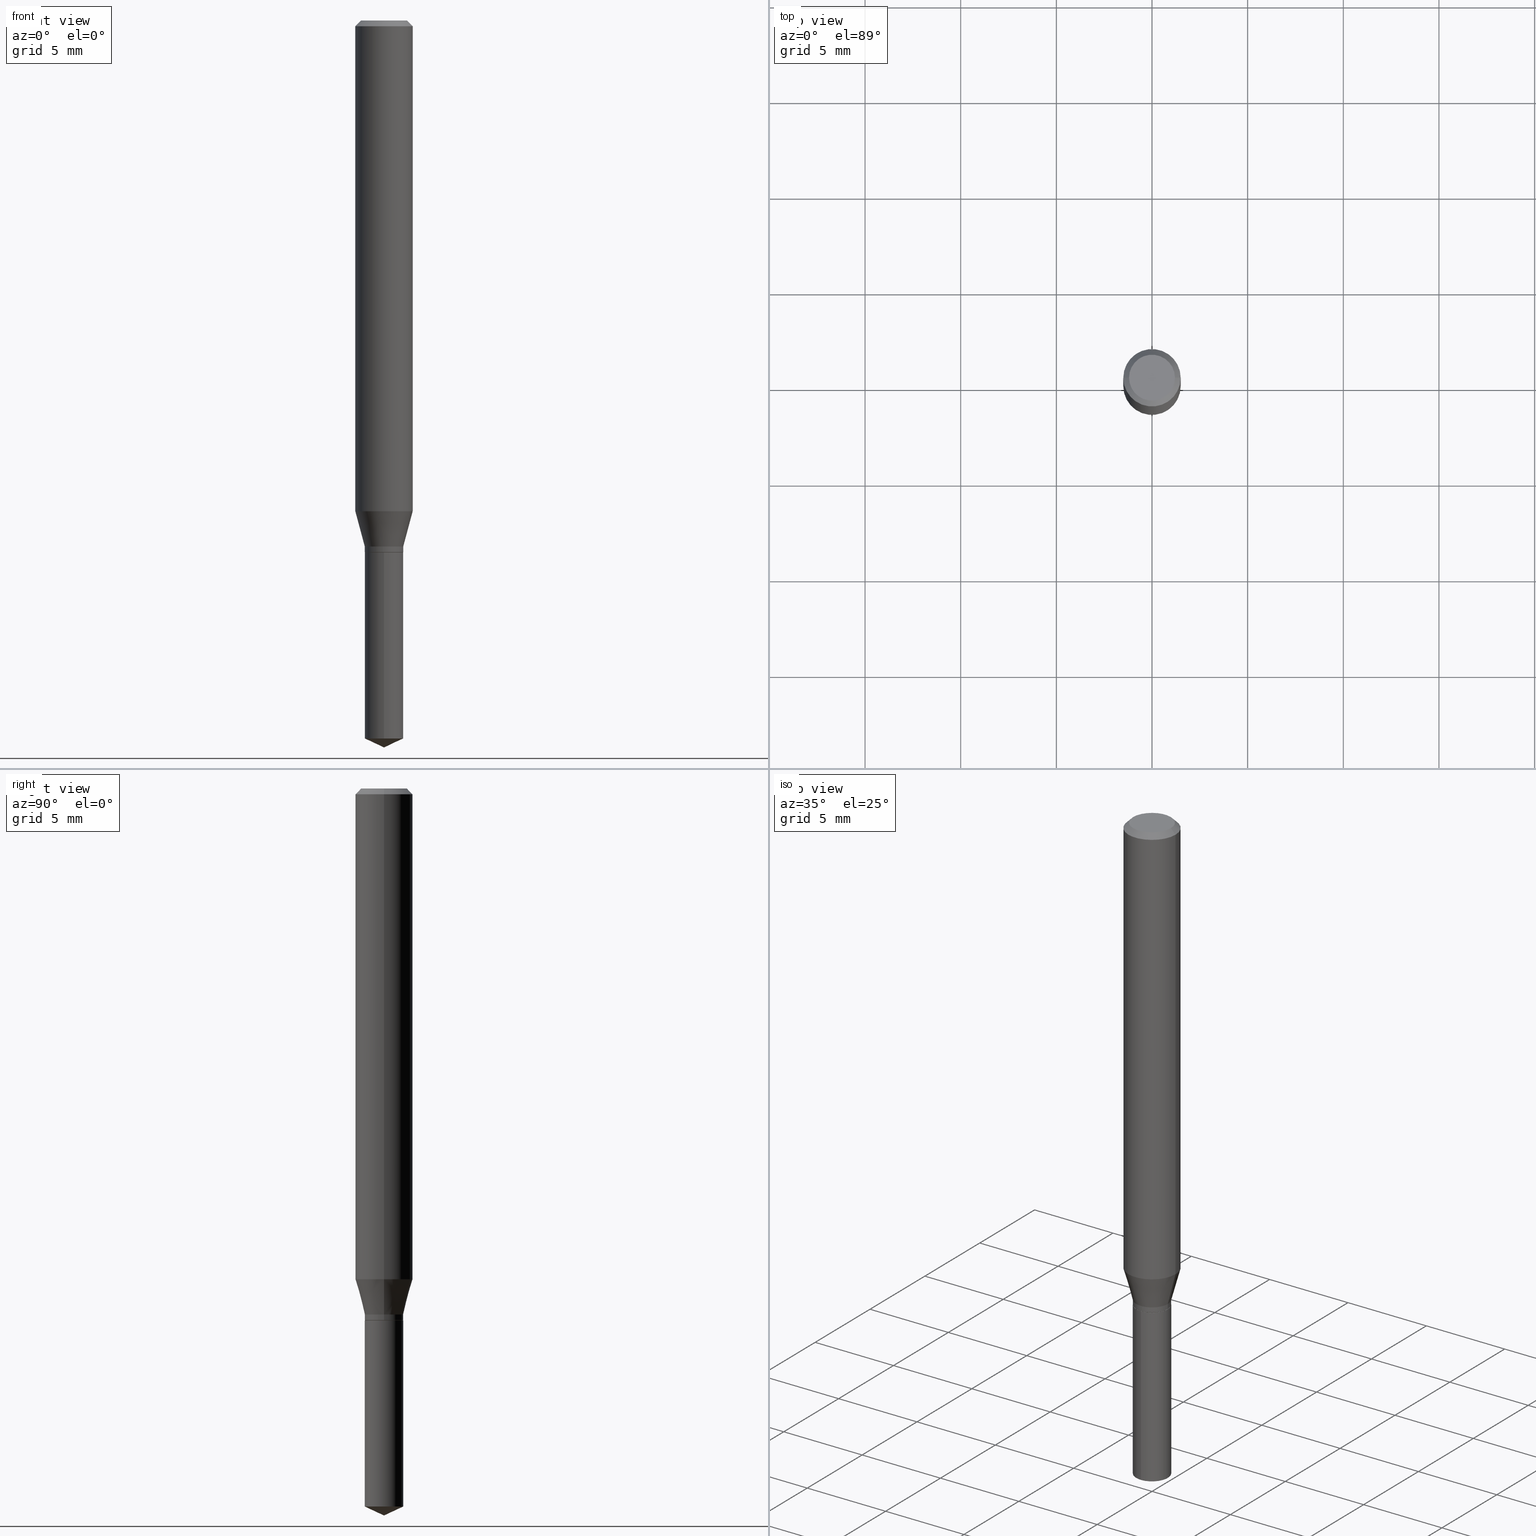
[diagram: canonical four-view strip — front | top / right | iso, engineering-drawing reading convention]
A machine part, canonical four-view strip (front | top / right | iso — engineering-drawing reading convention). The complete STEP part file that produces these views, byte-faithful:
ISO-10303-21;
HEADER;
FILE_DESCRIPTION (( 'STEP AP203' ),
    '1' );
FILE_NAME ('07602.STEP',
    '2024-04-23T23:36:06',
    ( '' ),
    ( '' ),
    'SwSTEP 2.0',
    'SolidWorks 2023',
    '' );
FILE_SCHEMA (( 'CONFIG_CONTROL_DESIGN' ));
ENDSEC;

DATA;
#1 = CARTESIAN_POINT ( 'NONE',  ( 2.810196519931463098E-16, 0.03954999999999617849, -1.094500000000000028 ) ) ;
#2 = CARTESIAN_POINT ( 'NONE',  ( -0.03954999999999996019, -3.518759489069875507E-15, -1.082600000000000007 ) ) ;
#3 = EDGE_LOOP ( 'NONE', ( #169, #244, #289, #199 ) ) ;
#4 = PERSON_AND_ORGANIZATION ( #125, #327 ) ;
#5 = CARTESIAN_POINT ( 'NONE',  ( 2.676565608369631794E-29, -3.821426325363822773E-15, -1.094499999999999806 ) ) ;
#6 = CONICAL_SURFACE ( 'NONE', #288, 0.05904999999999999832, 0.7853981633974452814 ) ;
#7 = ORIENTED_EDGE ( 'NONE', *, *, #172, .T. ) ;
#8 = EDGE_CURVE ( 'NONE', #353, #316, #53, .T. ) ;
#9 = EDGE_LOOP ( 'NONE', ( #242, #7, #349, #418 ) ) ;
#10 = PERSON_AND_ORGANIZATION ( #125, #327 ) ;
#11 = ORIENTED_EDGE ( 'NONE', *, *, #432, .F. ) ;
#12 = VECTOR ( 'NONE', #146, 39.37007874015748143 ) ;
#13 = PRODUCT_DEFINITION_FORMATION_WITH_SPECIFIED_SOURCE ( 'ANY', '', #95, .NOT_KNOWN. ) ;
#14 = ORIENTED_EDGE ( 'NONE', *, *, #58, .F. ) ;
#15 = APPROVAL ( #30, 'UNSPECIFIED' ) ;
#16 = DIRECTION ( 'NONE',  ( 0.7071067811864931718, -2.468850131081687503E-15, 0.7071067811866018626 ) ) ;
#17 = EDGE_LOOP ( 'NONE', ( #424, #340 ) ) ;
#18 = CARTESIAN_POINT ( 'NONE',  ( 2.676565608369631794E-29, -3.821426325363822773E-15, -1.094499999999999806 ) ) ;
#19 = DIRECTION ( 'NONE',  ( 2.445458899330789267E-29, -3.491495526022433599E-15, -1.000000000000000000 ) ) ;
#20 = CARTESIAN_POINT ( 'NONE',  ( 2.469495559832377020E-29, -3.525785175301884178E-15, -1.009825009252406369 ) ) ;
#21 = VECTOR ( 'NONE', #475, 39.37007874015748143 ) ;
#22 = EDGE_CURVE ( 'NONE', #116, #115, #398, .T. ) ;
#23 = CARTESIAN_POINT ( 'NONE',  ( 0.000000000000000000, 0.000000000000000000, 0.000000000000000000 ) ) ;
#24 = DATE_AND_TIME ( #306, #99 ) ;
#25 = CARTESIAN_POINT ( 'NONE',  ( 2.676565608369631794E-29, -3.821426325363822773E-15, -1.094499999999999806 ) ) ;
#26 = CARTESIAN_POINT ( 'NONE',  ( -0.05905000000000006077, 4.195754854663395916E-16, -2.904631170795524694E-30 ) ) ;
#27 = APPROVAL ( #449, 'UNSPECIFIED' ) ;
#28 = MANIFOLD_SOLID_BREP ( 'Body-Move/Copy2[1]', #241 ) ;
#29 = AXIS2_PLACEMENT_3D ( 'NONE', #144, #363, #277 ) ;
#30 = APPROVAL_STATUS ( 'not_yet_approved' ) ;
#31 = DIRECTION ( 'NONE',  ( -2.445458899330790108E-29, 3.491495526022433205E-15, 1.000000000000000000 ) ) ;
#32 = ORIENTED_EDGE ( 'NONE', *, *, #181, .F. ) ;
#33 = APPROVAL_DATE_TIME ( #268, #27 ) ;
#34 = ORIENTED_EDGE ( 'NONE', *, *, #342, .F. ) ;
#35 = DATE_TIME_ROLE ( 'classification_date' ) ;
#36 = ADVANCED_FACE ( 'NONE', ( #472 ), #366, .T. ) ;
#37 = CIRCLE ( 'NONE', #433, 0.03905000000000000138 ) ;
#38 = MANIFOLD_SOLID_BREP ( 'Body-Move/Copy2[2]', #249 ) ;
#39 = ORIENTED_EDGE ( 'NONE', *, *, #354, .F. ) ;
#40 = DIRECTION ( 'NONE',  ( 2.438088387897960049E-29, -3.491481338843145188E-15, -1.000000000000000000 ) ) ;
#41 = ORIENTED_EDGE ( 'NONE', *, *, #432, .T. ) ;
#42 = PERSON_AND_ORGANIZATION_ROLE ( 'classification_officer' ) ;
#43 = CARTESIAN_POINT ( 'NONE',  ( 2.647464529576028949E-29, -3.779877697431589411E-15, -1.082600000000000007 ) ) ;
#44 = EDGE_CURVE ( 'NONE', #115, #314, #309, .T. ) ;
#45 = ORIENTED_EDGE ( 'NONE', *, *, #388, .F. ) ;
#46 = CIRCLE ( 'NONE', #184, 0.03954999999999996019 ) ;
#47 = CARTESIAN_POINT ( 'NONE',  ( 2.675342873966538993E-29, -3.819680584694400481E-15, -1.093999999999999861 ) ) ;
#48 = VERTEX_POINT ( 'NONE', #178 ) ;
#49 = CARTESIAN_POINT ( 'NONE',  ( -0.03954999999999996019, 2.810196519931193406E-16, -1.945438828195813076E-30 ) ) ;
#50 = ADVANCED_FACE ( 'NONE', ( #407 ), #171, .F. ) ;
#51 = AXIS2_PLACEMENT_3D ( 'NONE', #260, #255, #335 ) ;
#52 = VECTOR ( 'NONE', #305, 39.37007874015747433 ) ;
#53 = LINE ( 'NONE', #299, #21 ) ;
#54 = CC_DESIGN_SECURITY_CLASSIFICATION ( #411, ( #13 ) ) ;
#55 = EDGE_LOOP ( 'NONE', ( #273, #395, #119, #69 ) ) ;
#56 = DIRECTION ( 'NONE',  ( -2.445468806185136597E-29, 3.491481338843145583E-15, 1.000000000000000000 ) ) ;
#57 = ADVANCED_BREP_SHAPE_REPRESENTATION ( '07602', ( #28, #38, #405 ), #265 ) ;
#58 = EDGE_CURVE ( 'NONE', #115, #127, #252, .T. ) ;
#59 = CARTESIAN_POINT ( 'NONE',  ( 2.888098660104663766E-31, -4.123439461173779647E-17, -0.01181000000000007044 ) ) ;
#60 = DIRECTION ( 'NONE',  ( 1.000000000000000000, -6.982962677686266711E-15, 4.876176775795935793E-29 ) ) ;
#61 = AXIS2_PLACEMENT_3D ( 'NONE', #135, #435, #89 ) ;
#62 = CONICAL_SURFACE ( 'NONE', #399, 0.03905000000000000138, 0.7853981633973714516 ) ;
#63 = DIRECTION ( 'NONE',  ( -2.445458899330790108E-29, 3.491495526022433205E-15, 1.000000000000000000 ) ) ;
#64 = ADVANCED_FACE ( 'NONE', ( #213 ), #430, .T. ) ;
#65 = FACE_OUTER_BOUND ( 'NONE', #109, .T. ) ;
#66 = APPROVAL ( #427, 'UNSPECIFIED' ) ;
#67 = AXIS2_PLACEMENT_3D ( 'NONE', #203, #214, #235 ) ;
#68 = DATE_AND_TIME ( #419, #176 ) ;
#69 = ORIENTED_EDGE ( 'NONE', *, *, #412, .F. ) ;
#70 =( CONVERSION_BASED_UNIT ( 'INCH', #195 ) LENGTH_UNIT ( ) NAMED_UNIT ( #253 ) );
#71 = ORIENTED_EDGE ( 'NONE', *, *, #106, .F. ) ;
#72 = ADVANCED_FACE ( 'NONE', ( #403 ), #469, .F. ) ;
#73 = ORIENTED_EDGE ( 'NONE', *, *, #194, .F. ) ;
#74 = AXIS2_PLACEMENT_3D ( 'NONE', #20, #183, #341 ) ;
#75 = CIRCLE ( 'NONE', #337, 0.03954999999999996019 ) ;
#76 = ORIENTED_EDGE ( 'NONE', *, *, #318, .T. ) ;
#77 = EDGE_CURVE ( 'NONE', #314, #201, #180, .T. ) ;
#78 = LINE ( 'NONE', #210, #336 ) ;
#79 = DIRECTION ( 'NONE',  ( -6.982962677686265922E-15, -1.000000000000000000, 3.453663708804378272E-15 ) ) ;
#80 = VERTEX_POINT ( 'NONE', #215 ) ;
#81 = FACE_OUTER_BOUND ( 'NONE', #223, .T. ) ;
#82 = CARTESIAN_POINT ( 'NONE',  ( -0.05904999999999999832, -1.363934299490470474E-15, -0.01181000000000007044 ) ) ;
#83 = VECTOR ( 'NONE', #16, 39.37007874015748143 ) ;
#84 = VECTOR ( 'NONE', #133, 39.37007874015748143 ) ;
#85 = LOCAL_TIME ( 19, 36, 6.000000000000000000, #320 ) ;
#86 = CARTESIAN_POINT ( 'NONE',  ( 0.000000000000000000, 0.000000000000000000, 0.000000000000000000 ) ) ;
#87 = CARTESIAN_POINT ( 'NONE',  ( 0.000000000000000000, 0.000000000000000000, 0.000000000000000000 ) ) ;
#88 = ORIENTED_EDGE ( 'NONE', *, *, #402, .F. ) ;
#89 = DIRECTION ( 'NONE',  ( 1.000000000000000000, -6.982962677686266711E-15, 4.876185090822587894E-29 ) ) ;
#90 = PLANE ( 'NONE',  #471 ) ;
#91 = FACE_OUTER_BOUND ( 'NONE', #55, .T. ) ;
#92 = DIRECTION ( 'NONE',  ( 1.000000000000000000, -6.982962677686266711E-15, 4.876176775795935793E-29 ) ) ;
#93 = CARTESIAN_POINT ( 'NONE',  ( 0.000000000000000000, 0.000000000000000000, 0.000000000000000000 ) ) ;
#94 = ADVANCED_FACE ( 'NONE', ( #372 ), #442, .T. ) ;
#95 = PRODUCT ( '07602', '07602', '', ( #229 ) ) ;
#96 = EDGE_LOOP ( 'NONE', ( #41, #409, #73, #357 ) ) ;
#97 = VECTOR ( 'NONE', #292, 39.37007874015748143 ) ;
#98 = VERTEX_POINT ( 'NONE', #82 ) ;
#99 = LOCAL_TIME ( 19, 36, 6.000000000000000000, #263 ) ;
#100 = EDGE_CURVE ( 'NONE', #370, #353, #157, .T. ) ;
#101 = PRODUCT_RELATED_PRODUCT_CATEGORY ( 'detail', '', ( #95 ) ) ;
#102 = FACE_OUTER_BOUND ( 'NONE', #240, .T. ) ;
#103 = DIRECTION ( 'NONE',  ( 1.000000000000000000, -6.982962677686262766E-15, 0.000000000000000000 ) ) ;
#104 = CIRCLE ( 'NONE', #355, 0.03905000000000000138 ) ;
#105 = COORDINATED_UNIVERSAL_TIME_OFFSET ( 5, 0, .BEHIND. ) ;
#106 = EDGE_CURVE ( 'NONE', #186, #461, #476, .T. ) ;
#107 = CARTESIAN_POINT ( 'NONE',  ( 0.05904999999999999832, -4.463468013801466955E-16, -0.01181000000000007044 ) ) ;
#108 = CARTESIAN_POINT ( 'NONE',  ( 3.658651059288795076E-29, -5.223626456482161457E-15, -1.496099999999999985 ) ) ;
#109 = EDGE_LOOP ( 'NONE', ( #487, #158, #426, #45 ) ) ;
#110 = APPLICATION_CONTEXT ( 'configuration controlled 3d designs of mechanical parts and assemblies' ) ;
#111 =( LENGTH_UNIT ( ) NAMED_UNIT ( * ) SI_UNIT ( $, .METRE. ) );
#112 = CIRCLE ( 'NONE', #159, 0.03955000000000000182 ) ;
#113 = AXIS2_PLACEMENT_3D ( 'NONE', #154, #31, #351 ) ;
#114 = EDGE_CURVE ( 'NONE', #461, #319, #112, .T. ) ;
#115 = VERTEX_POINT ( 'NONE', #486 ) ;
#116 = VERTEX_POINT ( 'NONE', #310 ) ;
#117 = APPROVAL_DATE_TIME ( #162, #66 ) ;
#118 = UNCERTAINTY_MEASURE_WITH_UNIT (LENGTH_MEASURE( 1.000000000000000082E-05 ), #70, 'distance_accuracy_value', 'NONE');
#119 = ORIENTED_EDGE ( 'NONE', *, *, #217, .F. ) ;
#120 = CC_DESIGN_DATE_AND_TIME_ASSIGNMENT ( #24, #189, ( #137 ) ) ;
#121 = AXIS2_PLACEMENT_3D ( 'NONE', #420, #315, #455 ) ;
#122 = FACE_OUTER_BOUND ( 'NONE', #153, .T. ) ;
#123 = ORIENTED_EDGE ( 'NONE', *, *, #230, .T. ) ;
#124 = ORIENTED_EDGE ( 'NONE', *, *, #318, .F. ) ;
#125 = PERSON ( 'UNSPECIFIED', 'UNSPECIFIED', 'UNSPECIFIED', ('UNSPECIFIED'), ('UNSPECIFIED'), ('UNSPECIFIED') ) ;
#126 = CYLINDRICAL_SURFACE ( 'NONE', #416, 0.03954999999999996019 ) ;
#127 = VERTEX_POINT ( 'NONE', #193 ) ;
#128 = CC_DESIGN_APPROVAL ( #27, ( #13 ) ) ;
#129 = DIRECTION ( 'NONE',  ( 1.000000000000000000, -6.982962677686262766E-15, 0.000000000000000000 ) ) ;
#130 = ADVANCED_FACE ( 'NONE', ( #65 ), #444, .T. ) ;
#131 = DIRECTION ( 'NONE',  ( -2.438088387897960049E-29, 3.491481338843145188E-15, 1.000000000000000000 ) ) ;
#132 = DIRECTION ( 'NONE',  ( -2.445458899330790108E-29, 3.491495526022433205E-15, 1.000000000000000000 ) ) ;
#133 = DIRECTION ( 'NONE',  ( -2.445458899330790108E-29, 3.491495526022433599E-15, 1.000000000000000000 ) ) ;
#134 = CARTESIAN_POINT ( 'NONE',  ( 2.676565608369631794E-29, -3.821426325363822773E-15, -1.094499999999999806 ) ) ;
#135 = CARTESIAN_POINT ( 'NONE',  ( 8.265746106709734507E-48, -1.180129479067563789E-33, -3.380025165646692144E-19 ) ) ;
#136 = EDGE_LOOP ( 'NONE', ( #207, #174, #124, #14 ) ) ;
#137 = PRODUCT_DEFINITION ( 'UNKNOWN', '', #13, #275 ) ;
#138 = CARTESIAN_POINT ( 'NONE',  ( 2.888098660104663766E-31, -4.123439461173779647E-17, -0.01181000000000007044 ) ) ;
#139 = APPROVAL_PERSON_ORGANIZATION ( #278, #15, #415 ) ;
#140 = LINE ( 'NONE', #1, #84 ) ;
#141 = CC_DESIGN_PERSON_AND_ORGANIZATION_ASSIGNMENT ( #4, #42, ( #411 ) ) ;
#142 = DIRECTION ( 'NONE',  ( -6.982962677686265922E-15, -1.000000000000000000, 3.453663708804378272E-15 ) ) ;
#143 = DIRECTION ( 'NONE',  ( -6.982962677686265922E-15, -1.000000000000000000, 6.907327417608756543E-15 ) ) ;
#144 = CARTESIAN_POINT ( 'NONE',  ( 2.647464529576028949E-29, -3.779877697431589411E-15, -1.082600000000000007 ) ) ;
#145 = APPROVAL_ROLE ( '' ) ;
#146 = DIRECTION ( 'NONE',  ( -0.7071067811865453523, 2.468850131082234184E-15, -0.7071067811865496822 ) ) ;
#147 = ADVANCED_FACE ( 'NONE', ( #102 ), #397, .T. ) ;
#148 = AXIS2_PLACEMENT_3D ( 'NONE', #378, #63, #228 ) ;
#149 = LOCAL_TIME ( 19, 36, 6.000000000000000000, #317 ) ;
#150 = CARTESIAN_POINT ( 'NONE',  ( 0.000000000000000000, 0.000000000000000000, 0.000000000000000000 ) ) ;
#151 = LINE ( 'NONE', #107, #276 ) ;
#152 = CARTESIAN_POINT ( 'NONE',  ( -0.03954999999999996019, -3.498858045438469971E-15, -1.082600000000000007 ) ) ;
#153 = EDGE_LOOP ( 'NONE', ( #88, #161, #196, #237 ) ) ;
#154 = CARTESIAN_POINT ( 'NONE',  ( 2.676565608369631794E-29, -3.821426325363822773E-15, -1.094499999999999806 ) ) ;
#155 = DIRECTION ( 'NONE',  ( -2.445468806185136597E-29, 3.491481338843145583E-15, 1.000000000000000000 ) ) ;
#156 = EDGE_CURVE ( 'NONE', #201, #370, #185, .T. ) ;
#157 = CIRCLE ( 'NONE', #74, 0.05905000000000011628 ) ;
#158 = ORIENTED_EDGE ( 'NONE', *, *, #100, .T. ) ;
#159 = AXIS2_PLACEMENT_3D ( 'NONE', #382, #484, #143 ) ;
#160 = CC_DESIGN_APPROVAL ( #66, ( #411 ) ) ;
#161 = ORIENTED_EDGE ( 'NONE', *, *, #114, .T. ) ;
#162 = DATE_AND_TIME ( #330, #85 ) ;
#163 = CYLINDRICAL_SURFACE ( 'NONE', #233, 0.05905000000000006077 ) ;
#164 = EDGE_LOOP ( 'NONE', ( #34, #284, #211, #329 ) ) ;
#165 = EDGE_LOOP ( 'NONE', ( #392, #282, #262, #39 ) ) ;
#166 = AXIS2_PLACEMENT_3D ( 'NONE', #93, #434, #332 ) ;
#167 = VECTOR ( 'NONE', #481, 39.37007874015748854 ) ;
#168 = DIRECTION ( 'NONE',  ( 1.000000000000000000, -6.982962677686265922E-15, 4.876176775795935793E-29 ) ) ;
#169 = ORIENTED_EDGE ( 'NONE', *, *, #272, .F. ) ;
#170 = DIRECTION ( 'NONE',  ( 0.2588190451025213501, 1.565188264969621968E-15, 0.9659258262890682012 ) ) ;
#171 = PLANE ( 'NONE',  #379 ) ;
#172 = EDGE_CURVE ( 'NONE', #422, #116, #37, .T. ) ;
#173 = DIRECTION ( 'NONE',  ( -2.445468806185136597E-29, 3.491481338843145583E-15, 1.000000000000000000 ) ) ;
#174 = ORIENTED_EDGE ( 'NONE', *, *, #77, .T. ) ;
#175 = CONICAL_SURFACE ( 'NONE', #425, 0.03954999999999996019, 0.2617993877991500740 ) ;
#176 = LOCAL_TIME ( 19, 36, 6.000000000000000000, #308 ) ;
#177 = CARTESIAN_POINT ( 'NONE',  ( 2.647464529576028949E-29, -3.779877697431589411E-15, -1.082600000000000007 ) ) ;
#178 = CARTESIAN_POINT ( 'NONE',  ( 0.04724000000000000421, -3.852183633974369345E-16, -3.380025165621689721E-19 ) ) ;
#179 = PERSON_AND_ORGANIZATION_ROLE ( 'design_supplier' ) ;
#180 = LINE ( 'NONE', #49, #97 ) ;
#181 = EDGE_CURVE ( 'NONE', #186, #319, #188, .T. ) ;
#182 = SECURITY_CLASSIFICATION_LEVEL ( 'unclassified' ) ;
#183 = DIRECTION ( 'NONE',  ( -2.445468806185136597E-29, 3.491481338843145583E-15, 1.000000000000000000 ) ) ;
#184 = AXIS2_PLACEMENT_3D ( 'NONE', #293, #56, #269 ) ;
#185 = LINE ( 'NONE', #152, #52 ) ;
#186 = VERTEX_POINT ( 'NONE', #232 ) ;
#187 =( NAMED_UNIT ( * ) PLANE_ANGLE_UNIT ( ) SI_UNIT ( $, .RADIAN. ) );
#188 = LINE ( 'NONE', #108, #243 ) ;
#189 = DATE_TIME_ROLE ( 'creation_date' ) ;
#190 = ADVANCED_FACE ( 'NONE', ( #321 ), #90, .F. ) ;
#191 = DIRECTION ( 'NONE',  ( -2.445468806185136597E-29, 3.491481338843145583E-15, 1.000000000000000000 ) ) ;
#192 = DIRECTION ( 'NONE',  ( 1.000000000000000000, 0.000000000000000000, 0.000000000000000000 ) ) ;
#193 = CARTESIAN_POINT ( 'NONE',  ( 0.03954999999999996019, -4.056053871334080742E-15, -1.082600000000000007 ) ) ;
#194 = EDGE_CURVE ( 'NONE', #316, #98, #220, .T. ) ;
#195 = LENGTH_MEASURE_WITH_UNIT ( LENGTH_MEASURE( 0.02539999999999999897 ), #111 );
#196 = ORIENTED_EDGE ( 'NONE', *, *, #412, .T. ) ;
#197 = PERSON_AND_ORGANIZATION ( #125, #327 ) ;
#198 = DIRECTION ( 'NONE',  ( -2.445458899330790108E-29, 3.491495526022433205E-15, 1.000000000000000000 ) ) ;
#199 = ORIENTED_EDGE ( 'NONE', *, *, #388, .T. ) ;
#200 = CYLINDRICAL_SURFACE ( 'NONE', #326, 0.03955000000000000182 ) ;
#201 = VERTEX_POINT ( 'NONE', #2 ) ;
#202 = EDGE_CURVE ( 'NONE', #422, #314, #280, .T. ) ;
#203 = CARTESIAN_POINT ( 'NONE',  ( 2.888098660104663766E-31, -4.123439461173779647E-17, -0.01181000000000007044 ) ) ;
#204 = ORIENTED_EDGE ( 'NONE', *, *, #106, .T. ) ;
#205 = APPROVAL_ROLE ( '' ) ;
#206 = DIRECTION ( 'NONE',  ( 1.000000000000000000, -6.982962677686266711E-15, 0.000000000000000000 ) ) ;
#207 = ORIENTED_EDGE ( 'NONE', *, *, #44, .T. ) ;
#208 = AXIS2_PLACEMENT_3D ( 'NONE', #440, #132, #142 ) ;
#209 = LOCAL_TIME ( 19, 36, 6.000000000000000000, #105 ) ;
#210 = CARTESIAN_POINT ( 'NONE',  ( -2.761761739024651013E-16, -0.03955000000000382515, -1.094499999999999806 ) ) ;
#211 = ORIENTED_EDGE ( 'NONE', *, *, #194, .T. ) ;
#212 = DIRECTION ( 'NONE',  ( -2.445468806185136597E-29, 3.491481338843145583E-15, 1.000000000000000000 ) ) ;
#213 = FACE_OUTER_BOUND ( 'NONE', #136, .T. ) ;
#214 = DIRECTION ( 'NONE',  ( -2.445468806185136597E-29, 3.491481338843145583E-15, 1.000000000000000000 ) ) ;
#215 = CARTESIAN_POINT ( 'NONE',  ( 2.810196519931557268E-16, 0.03954999999999617849, -1.094500000000000028 ) ) ;
#216 = AXIS2_PLACEMENT_3D ( 'NONE', #177, #431, #371 ) ;
#217 = EDGE_CURVE ( 'NONE', #441, #80, #250, .T. ) ;
#218 = DIRECTION ( 'NONE',  ( -2.445468806185136597E-29, 3.491481338843145583E-15, 1.000000000000000000 ) ) ;
#219 = DIRECTION ( 'NONE',  ( -2.445468806185136877E-29, 3.491481338843145188E-15, 1.000000000000000000 ) ) ;
#220 = CIRCLE ( 'NONE', #67, 0.05904999999999999832 ) ;
#221 = CC_DESIGN_APPROVAL ( #15, ( #137 ) ) ;
#222 = DIRECTION ( 'NONE',  ( -2.445468806185136597E-29, 3.491481338843145583E-15, 1.000000000000000000 ) ) ;
#223 = EDGE_LOOP ( 'NONE', ( #248, #438, #453, #245 ) ) ;
#224 = ADVANCED_FACE ( 'NONE', ( #302 ), #6, .T. ) ;
#225 =( NAMED_UNIT ( * ) SI_UNIT ( $, .STERADIAN. ) SOLID_ANGLE_UNIT ( ) );
#226 = LINE ( 'NONE', #279, #12 ) ;
#227 = CALENDAR_DATE ( 2024, 23, 4 ) ;
#228 = DIRECTION ( 'NONE',  ( -6.982962677686267499E-15, -1.000000000000000000, 3.520397390770444404E-15 ) ) ;
#229 = MECHANICAL_CONTEXT ( 'NONE', #304, 'mechanical' ) ;
#230 = EDGE_CURVE ( 'NONE', #360, #48, #463, .T. ) ;
#231 = AXIS2_PLACEMENT_3D ( 'NONE', #18, #218, #376 ) ;
#232 = CARTESIAN_POINT ( 'NONE',  ( 3.658651059288794515E-29, -5.223626456482161457E-15, -1.496099999999999985 ) ) ;
#233 = AXIS2_PLACEMENT_3D ( 'NONE', #87, #212, #92 ) ;
#234 = VECTOR ( 'NONE', #413, 39.37007874015748143 ) ;
#235 = DIRECTION ( 'NONE',  ( 1.000000000000000000, -6.982962677686266711E-15, 0.000000000000000000 ) ) ;
#236 = CC_DESIGN_DATE_AND_TIME_ASSIGNMENT ( #391, #35, ( #411 ) ) ;
#237 = ORIENTED_EDGE ( 'NONE', *, *, #286, .F. ) ;
#238 = PERSON_AND_ORGANIZATION ( #125, #327 ) ;
#239 = DIRECTION ( 'NONE',  ( -0.7071067811864931718, 7.493145998870158523E-15, 0.7071067811866018626 ) ) ;
#240 = EDGE_LOOP ( 'NONE', ( #71, #369, #429 ) ) ;
#241 = CLOSED_SHELL ( 'NONE', ( #462, #447, #147, #362, #72 ) ) ;
#242 = ORIENTED_EDGE ( 'NONE', *, *, #202, .F. ) ;
#243 = VECTOR ( 'NONE', #414, 39.37007874015748854 ) ;
#244 = ORIENTED_EDGE ( 'NONE', *, *, #230, .F. ) ;
#245 = ORIENTED_EDGE ( 'NONE', *, *, #100, .F. ) ;
#246 = PERSON_AND_ORGANIZATION_ROLE ( 'creator' ) ;
#247 = CARTESIAN_POINT ( 'NONE',  ( -0.03905000000000000138, -3.541310159875392243E-15, -1.094499999999999806 ) ) ;
#248 = ORIENTED_EDGE ( 'NONE', *, *, #156, .F. ) ;
#249 = CLOSED_SHELL ( 'NONE', ( #94, #224, #377, #428, #64, #439, #406, #130, #36, #190, #50, #467 ) ) ;
#250 = CIRCLE ( 'NONE', #208, 0.03955000000000000182 ) ;
#251 = APPROVAL_PERSON_ORGANIZATION ( #358, #66, #205 ) ;
#252 = LINE ( 'NONE', #473, #373 ) ;
#253 = DIMENSIONAL_EXPONENTS ( 1.000000000000000000, 0.000000000000000000, 0.000000000000000000, 0.000000000000000000, 0.000000000000000000, 0.000000000000000000, 0.000000000000000000 ) ;
#254 = DIRECTION ( 'NONE',  ( -1.000000000000000000, 6.982962677686265922E-15, -4.876176775795935793E-29 ) ) ;
#255 = DIRECTION ( 'NONE',  ( 2.445468806185136597E-29, -3.491481338843145583E-15, -1.000000000000000000 ) ) ;
#256 = DIRECTION ( 'NONE',  ( -2.445458899330790108E-29, 3.491495526022433599E-15, 1.000000000000000000 ) ) ;
#257 = CARTESIAN_POINT ( 'NONE',  ( 0.03905000000000000138, -4.094111017927471097E-15, -1.094499999999999806 ) ) ;
#258 = CIRCLE ( 'NONE', #29, 0.03954999999999996019 ) ;
#259 = CONICAL_SURFACE ( 'NONE', #451, 84.42940631927456252, 1.134464013796316895 ) ;
#260 = CARTESIAN_POINT ( 'NONE',  ( 2.888098660104663766E-31, -4.123439461173779647E-17, -0.01181000000000007044 ) ) ;
#261 = DIRECTION ( 'NONE',  ( 2.445468806185136597E-29, -3.491481338843145583E-15, -1.000000000000000000 ) ) ;
#262 = ORIENTED_EDGE ( 'NONE', *, *, #58, .T. ) ;
#263 = COORDINATED_UNIVERSAL_TIME_OFFSET ( 5, 0, .BEHIND. ) ;
#264 = DIRECTION ( 'NONE',  ( 1.000000000000000000, -6.982962677686266711E-15, 4.876185090822587894E-29 ) ) ;
#265 =( GEOMETRIC_REPRESENTATION_CONTEXT ( 3 ) GLOBAL_UNCERTAINTY_ASSIGNED_CONTEXT ( ( #118 ) ) GLOBAL_UNIT_ASSIGNED_CONTEXT ( ( #70, #187, #225 ) ) REPRESENTATION_CONTEXT ( 'NONE', 'WORKASPACE' ) );
#266 = CARTESIAN_POINT ( 'NONE',  ( 3.658672935554494692E-29, -5.223595400746700193E-15, -1.496099999999999985 ) ) ;
#267 = CARTESIAN_POINT ( 'NONE',  ( 0.05905000000000011628, -3.938129121419258704E-15, -1.009825009252406369 ) ) ;
#268 = DATE_AND_TIME ( #227, #209 ) ;
#269 = DIRECTION ( 'NONE',  ( 1.000000000000000000, -6.982962677686262766E-15, 0.000000000000000000 ) ) ;
#270 = DIRECTION ( 'NONE',  ( -2.445468806185136597E-29, 3.491481338843145583E-15, 1.000000000000000000 ) ) ;
#271 = DIRECTION ( 'NONE',  ( -6.982962677686265922E-15, -1.000000000000000000, 3.453663708804378272E-15 ) ) ;
#272 = EDGE_CURVE ( 'NONE', #48, #316, #151, .T. ) ;
#273 = ORIENTED_EDGE ( 'NONE', *, *, #300, .T. ) ;
#274 = CARTESIAN_POINT ( 'NONE',  ( 2.676565608369631794E-29, -3.821426325363822773E-15, -1.094499999999999806 ) ) ;
#275 = DESIGN_CONTEXT ( 'detailed design', #110, 'design' ) ;
#276 = VECTOR ( 'NONE', #350, 39.37007874015748143 ) ;
#277 = DIRECTION ( 'NONE',  ( 1.000000000000000000, -6.982962677686262766E-15, 0.000000000000000000 ) ) ;
#278 = PERSON_AND_ORGANIZATION ( #125, #327 ) ;
#279 = CARTESIAN_POINT ( 'NONE',  ( -0.05904999999999999832, 3.711095515056362547E-16, -0.01181000000000007044 ) ) ;
#280 = LINE ( 'NONE', #421, #448 ) ;
#281 = CARTESIAN_POINT ( 'NONE',  ( 2.676565608369631794E-29, -3.821426325363822773E-15, -1.094499999999999806 ) ) ;
#282 = ORIENTED_EDGE ( 'NONE', *, *, #480, .T. ) ;
#283 = CARTESIAN_POINT ( 'NONE',  ( -0.05905000000000011628, -3.106209689835544291E-15, -1.009825009252406369 ) ) ;
#284 = ORIENTED_EDGE ( 'NONE', *, *, #272, .T. ) ;
#285 = SHAPE_DEFINITION_REPRESENTATION ( #361, #57 ) ;
#286 = EDGE_CURVE ( 'NONE', #80, #441, #477, .T. ) ;
#287 = ORIENTED_EDGE ( 'NONE', *, *, #291, .T. ) ;
#288 = AXIS2_PLACEMENT_3D ( 'NONE', #138, #261, #410 ) ;
#289 = ORIENTED_EDGE ( 'NONE', *, *, #311, .T. ) ;
#290 = CALENDAR_DATE ( 2024, 23, 4 ) ;
#291 = EDGE_CURVE ( 'NONE', #116, #422, #104, .T. ) ;
#292 = DIRECTION ( 'NONE',  ( -2.445468806185136877E-29, 3.491481338843145188E-15, 1.000000000000000000 ) ) ;
#293 = CARTESIAN_POINT ( 'NONE',  ( 2.647464529576028949E-29, -3.779877697431589411E-15, -1.082600000000000007 ) ) ;
#294 = CARTESIAN_POINT ( 'NONE',  ( -9.261924752013118283E-28, 1.322368428517963298E-13, 37.87397874015748300 ) ) ;
#295 = DIRECTION ( 'NONE',  ( 6.982962677686265922E-15, 1.000000000000000000, -3.491495526022433599E-15 ) ) ;
#296 = VECTOR ( 'NONE', #170, 39.37007874015747433 ) ;
#297 = CARTESIAN_POINT ( 'NONE',  ( 2.810196519931557761E-16, 0.03954999999999485316, -1.477657532119970085 ) ) ;
#298 = DIRECTION ( 'NONE',  ( 1.000000000000000000, -6.982962677686265922E-15, 4.876176775795935793E-29 ) ) ;
#299 = CARTESIAN_POINT ( 'NONE',  ( 0.05905000000000006077, -4.123439461173744764E-16, 2.879382386107503023E-30 ) ) ;
#300 = EDGE_CURVE ( 'NONE', #319, #461, #343, .T. ) ;
#301 = ORIENTED_EDGE ( 'NONE', *, *, #44, .F. ) ;
#302 = FACE_OUTER_BOUND ( 'NONE', #164, .T. ) ;
#303 = AXIS2_PLACEMENT_3D ( 'NONE', #338, #173, #206 ) ;
#304 = APPLICATION_CONTEXT ( 'configuration controlled 3d designs of mechanical parts and assemblies' ) ;
#305 = DIRECTION ( 'NONE',  ( -0.2588190451025213501, 5.211531920934551042E-15, 0.9659258262890682012 ) ) ;
#306 = CALENDAR_DATE ( 2024, 23, 4 ) ;
#307 = CARTESIAN_POINT ( 'NONE',  ( 8.265746106709734507E-48, -1.180129479067563789E-33, -3.380025165646692144E-19 ) ) ;
#308 = COORDINATED_UNIVERSAL_TIME_OFFSET ( 5, 0, .BEHIND. ) ;
#309 = CIRCLE ( 'NONE', #347, 0.03954999999999996019 ) ;
#310 = CARTESIAN_POINT ( 'NONE',  ( 0.03905000000000000138, -4.094111017927471097E-15, -1.094499999999999806 ) ) ;
#311 = EDGE_CURVE ( 'NONE', #360, #98, #226, .T. ) ;
#312 = FACE_OUTER_BOUND ( 'NONE', #9, .T. ) ;
#313 = CARTESIAN_POINT ( 'NONE',  ( 2.676565608369631794E-29, -3.821426325363822773E-15, -1.094499999999999806 ) ) ;
#314 = VERTEX_POINT ( 'NONE', #322 ) ;
#315 = DIRECTION ( 'NONE',  ( -2.445458899330790108E-29, 3.491495526022433205E-15, 1.000000000000000000 ) ) ;
#316 = VERTEX_POINT ( 'NONE', #400 ) ;
#317 = COORDINATED_UNIVERSAL_TIME_OFFSET ( 5, 0, .BEHIND. ) ;
#318 = EDGE_CURVE ( 'NONE', #127, #201, #46, .T. ) ;
#319 = VERTEX_POINT ( 'NONE', #478 ) ;
#320 = COORDINATED_UNIVERSAL_TIME_OFFSET ( 5, 0, .BEHIND. ) ;
#321 = FACE_OUTER_BOUND ( 'NONE', #325, .T. ) ;
#322 = CARTESIAN_POINT ( 'NONE',  ( -0.03954999999999996019, -3.518759489069875507E-15, -1.093999999999999861 ) ) ;
#323 = EDGE_LOOP ( 'NONE', ( #32, #204, #367 ) ) ;
#324 = AXIS2_PLACEMENT_3D ( 'NONE', #134, #19, #295 ) ;
#325 = EDGE_LOOP ( 'NONE', ( #123, #364 ) ) ;
#326 = AXIS2_PLACEMENT_3D ( 'NONE', #281, #198, #79 ) ;
#327 = ORGANIZATION ( 'UNSPECIFIED', 'UNSPECIFIED', '' ) ;
#328 = EDGE_CURVE ( 'NONE', #127, #353, #423, .T. ) ;
#329 = ORIENTED_EDGE ( 'NONE', *, *, #311, .F. ) ;
#330 = CALENDAR_DATE ( 2024, 23, 4 ) ;
#331 = DIRECTION ( 'NONE',  ( -2.445468806185136597E-29, 3.491481338843145583E-15, 1.000000000000000000 ) ) ;
#332 = DIRECTION ( 'NONE',  ( 1.000000000000000000, -6.982962677686265922E-15, 4.876176775795935793E-29 ) ) ;
#333 = CARTESIAN_POINT ( 'NONE',  ( 0.03954999999999996019, -4.056053871334080742E-15, -1.082600000000000007 ) ) ;
#334 = DIRECTION ( 'NONE',  ( -2.445458899330790108E-29, 3.491495526022433205E-15, 1.000000000000000000 ) ) ;
#335 = DIRECTION ( 'NONE',  ( -1.000000000000000000, 6.982962677686266711E-15, 0.000000000000000000 ) ) ;
#336 = VECTOR ( 'NONE', #256, 39.37007874015748143 ) ;
#337 = AXIS2_PLACEMENT_3D ( 'NONE', #452, #345, #103 ) ;
#338 = CARTESIAN_POINT ( 'NONE',  ( 2.469495559832377020E-29, -3.525785175301884178E-15, -1.009825009252406369 ) ) ;
#339 = ORIENTED_EDGE ( 'NONE', *, *, #286, .T. ) ;
#340 = ORIENTED_EDGE ( 'NONE', *, *, #172, .F. ) ;
#341 = DIRECTION ( 'NONE',  ( 1.000000000000000000, -6.982962677686266711E-15, 0.000000000000000000 ) ) ;
#342 = EDGE_CURVE ( 'NONE', #48, #360, #443, .T. ) ;
#343 = CIRCLE ( 'NONE', #121, 0.03955000000000000182 ) ;
#344 = PERSON_AND_ORGANIZATION ( #125, #327 ) ;
#345 = DIRECTION ( 'NONE',  ( -2.445468806185136597E-29, 3.491481338843145583E-15, 1.000000000000000000 ) ) ;
#346 = APPLICATION_PROTOCOL_DEFINITION ( 'international standard', 'config_control_design', 1994, #304 ) ;
#347 = AXIS2_PLACEMENT_3D ( 'NONE', #47, #437, #375 ) ;
#348 = AXIS2_PLACEMENT_3D ( 'NONE', #307, #445, #264 ) ;
#349 = ORIENTED_EDGE ( 'NONE', *, *, #22, .T. ) ;
#350 = DIRECTION ( 'NONE',  ( 0.7071067811865453523, -7.319954787623248157E-15, -0.7071067811865496822 ) ) ;
#351 = DIRECTION ( 'NONE',  ( -6.982962677686265922E-15, -1.000000000000000000, 3.453663708804378272E-15 ) ) ;
#352 = DIRECTION ( 'NONE',  ( 1.000000000000000000, -6.982962677686266711E-15, 0.000000000000000000 ) ) ;
#353 = VERTEX_POINT ( 'NONE', #267 ) ;
#354 = EDGE_CURVE ( 'NONE', #201, #127, #258, .T. ) ;
#355 = AXIS2_PLACEMENT_3D ( 'NONE', #25, #155, #352 ) ;
#356 = APPROVAL_PERSON_ORGANIZATION ( #482, #27, #145 ) ;
#357 = ORIENTED_EDGE ( 'NONE', *, *, #8, .F. ) ;
#358 = PERSON_AND_ORGANIZATION ( #125, #327 ) ;
#359 = FACE_OUTER_BOUND ( 'NONE', #96, .T. ) ;
#360 = VERTEX_POINT ( 'NONE', #458 ) ;
#361 = PRODUCT_DEFINITION_SHAPE ( 'NONE', 'NONE',  #137 ) ;
#362 = ADVANCED_FACE ( 'NONE', ( #122 ), #200, .T. ) ;
#363 = DIRECTION ( 'NONE',  ( -2.445468806185136597E-29, 3.491481338843145583E-15, 1.000000000000000000 ) ) ;
#364 = ORIENTED_EDGE ( 'NONE', *, *, #342, .T. ) ;
#365 = FACE_OUTER_BOUND ( 'NONE', #165, .T. ) ;
#366 = CONICAL_SURFACE ( 'NONE', #51, 0.05904999999999999832, 0.7853981633974452814 ) ;
#367 = ORIENTED_EDGE ( 'NONE', *, *, #300, .F. ) ;
#368 = CONICAL_SURFACE ( 'NONE', #216, 0.03954999999999996019, 0.2617993877991500740 ) ;
#369 = ORIENTED_EDGE ( 'NONE', *, *, #181, .T. ) ;
#370 = VERTEX_POINT ( 'NONE', #283 ) ;
#371 = DIRECTION ( 'NONE',  ( 1.000000000000000000, -6.982962677686262766E-15, 0.000000000000000000 ) ) ;
#372 = FACE_OUTER_BOUND ( 'NONE', #387, .T. ) ;
#373 = VECTOR ( 'NONE', #219, 39.37007874015748143 ) ;
#374 = AXIS2_PLACEMENT_3D ( 'NONE', #5, #450, #271 ) ;
#375 = DIRECTION ( 'NONE',  ( 1.000000000000000000, -6.982962677686262766E-15, 0.000000000000000000 ) ) ;
#376 = DIRECTION ( 'NONE',  ( 1.000000000000000000, -6.982962677686266711E-15, 0.000000000000000000 ) ) ;
#377 = ADVANCED_FACE ( 'NONE', ( #359 ), #163, .T. ) ;
#378 = CARTESIAN_POINT ( 'NONE',  ( -9.261924752013118283E-28, 1.322368428517963298E-13, 37.87397874015748300 ) ) ;
#379 = AXIS2_PLACEMENT_3D ( 'NONE', #404, #131, #298 ) ;
#380 = AXIS2_PLACEMENT_3D ( 'NONE', #23, #408, #60 ) ;
#381 = LINE ( 'NONE', #26, #234 ) ;
#382 = CARTESIAN_POINT ( 'NONE',  ( 3.613561605138035759E-29, -5.159219134522494215E-15, -1.477657532119969863 ) ) ;
#383 = CYLINDRICAL_SURFACE ( 'NONE', #113, 0.03955000000000000182 ) ;
#384 = DIRECTION ( 'NONE',  ( 1.000000000000000000, -6.982962677686266711E-15, 0.000000000000000000 ) ) ;
#385 = CIRCLE ( 'NONE', #456, 0.05904999999999999832 ) ;
#386 = DIRECTION ( 'NONE',  ( 1.000000000000000000, -6.982962677686266711E-15, 0.000000000000000000 ) ) ;
#387 = EDGE_LOOP ( 'NONE', ( #287, #464, #301, #466 ) ) ;
#388 = EDGE_CURVE ( 'NONE', #98, #316, #385, .T. ) ;
#389 = APPROVAL_DATE_TIME ( #68, #15 ) ;
#390 = EDGE_LOOP ( 'NONE', ( #76, #394, #11, #401 ) ) ;
#391 = DATE_AND_TIME ( #290, #149 ) ;
#392 = ORIENTED_EDGE ( 'NONE', *, *, #77, .F. ) ;
#393 = CC_DESIGN_PERSON_AND_ORGANIZATION_ASSIGNMENT ( #344, #479, ( #137 ) ) ;
#394 = ORIENTED_EDGE ( 'NONE', *, *, #156, .T. ) ;
#395 = ORIENTED_EDGE ( 'NONE', *, *, #402, .T. ) ;
#396 = FACE_OUTER_BOUND ( 'NONE', #390, .T. ) ;
#397 = CONICAL_SURFACE ( 'NONE', #148, 84.42940631927456252, 1.134464013796316895 ) ;
#398 = LINE ( 'NONE', #257, #83 ) ;
#399 = AXIS2_PLACEMENT_3D ( 'NONE', #274, #270, #386 ) ;
#400 = CARTESIAN_POINT ( 'NONE',  ( 0.05904999999999999832, -4.535783407291118600E-16, -0.01181000000000007044 ) ) ;
#401 = ORIENTED_EDGE ( 'NONE', *, *, #328, .F. ) ;
#402 = EDGE_CURVE ( 'NONE', #461, #80, #140, .T. ) ;
#403 = FACE_OUTER_BOUND ( 'NONE', #459, .T. ) ;
#404 = CARTESIAN_POINT ( 'NONE',  ( 2.676565608369631794E-29, -3.821426325363822773E-15, -1.094499999999999806 ) ) ;
#405 = AXIS2_PLACEMENT_3D ( 'NONE', #150, #490, #192 ) ;
#406 = ADVANCED_FACE ( 'NONE', ( #81 ), #175, .T. ) ;
#407 = FACE_OUTER_BOUND ( 'NONE', #17, .T. ) ;
#408 = DIRECTION ( 'NONE',  ( -2.445468806185136597E-29, 3.491481338843145583E-15, 1.000000000000000000 ) ) ;
#409 = ORIENTED_EDGE ( 'NONE', *, *, #488, .T. ) ;
#410 = DIRECTION ( 'NONE',  ( -1.000000000000000000, 6.982962677686266711E-15, 0.000000000000000000 ) ) ;
#411 = SECURITY_CLASSIFICATION ( '', '', #182 ) ;
#412 = EDGE_CURVE ( 'NONE', #319, #441, #78, .T. ) ;
#413 = DIRECTION ( 'NONE',  ( -2.445468806185136877E-29, 3.491481338843145188E-15, 1.000000000000000000 ) ) ;
#414 = DIRECTION ( 'NONE',  ( -6.328713451373378056E-15, -0.9063077870366496036, 0.4226182617407002184 ) ) ;
#415 = APPROVAL_ROLE ( '' ) ;
#416 = AXIS2_PLACEMENT_3D ( 'NONE', #86, #436, #168 ) ;
#417 = CARTESIAN_POINT ( 'NONE',  ( 4.132873053354867254E-48, -5.900647395337818946E-34, -1.690012582823346072E-19 ) ) ;
#418 = ORIENTED_EDGE ( 'NONE', *, *, #480, .F. ) ;
#419 = CALENDAR_DATE ( 2024, 23, 4 ) ;
#420 = CARTESIAN_POINT ( 'NONE',  ( 3.613561605138035759E-29, -5.159219134522494215E-15, -1.477657532119969863 ) ) ;
#421 = CARTESIAN_POINT ( 'NONE',  ( -0.03905000000000000138, -3.543959387049503444E-15, -1.094499999999999806 ) ) ;
#422 = VERTEX_POINT ( 'NONE', #247 ) ;
#423 = LINE ( 'NONE', #333, #296 ) ;
#424 = ORIENTED_EDGE ( 'NONE', *, *, #291, .F. ) ;
#425 = AXIS2_PLACEMENT_3D ( 'NONE', #43, #331, #129 ) ;
#426 = ORIENTED_EDGE ( 'NONE', *, *, #8, .T. ) ;
#427 = APPROVAL_STATUS ( 'not_yet_approved' ) ;
#428 = ADVANCED_FACE ( 'NONE', ( #396 ), #368, .T. ) ;
#429 = ORIENTED_EDGE ( 'NONE', *, *, #114, .F. ) ;
#430 = CYLINDRICAL_SURFACE ( 'NONE', #166, 0.03954999999999996019 ) ;
#431 = DIRECTION ( 'NONE',  ( -2.445468806185136597E-29, 3.491481338843145583E-15, 1.000000000000000000 ) ) ;
#432 = EDGE_CURVE ( 'NONE', #353, #370, #485, .T. ) ;
#433 = AXIS2_PLACEMENT_3D ( 'NONE', #313, #222, #384 ) ;
#434 = DIRECTION ( 'NONE',  ( -2.445468806185136597E-29, 3.491481338843145583E-15, 1.000000000000000000 ) ) ;
#435 = DIRECTION ( 'NONE',  ( -2.445468806185136597E-29, 3.491481338843145583E-15, 1.000000000000000000 ) ) ;
#436 = DIRECTION ( 'NONE',  ( -2.445468806185136597E-29, 3.491481338843145583E-15, 1.000000000000000000 ) ) ;
#437 = DIRECTION ( 'NONE',  ( -2.445468806185136597E-29, 3.491481338843145583E-15, 1.000000000000000000 ) ) ;
#438 = ORIENTED_EDGE ( 'NONE', *, *, #354, .T. ) ;
#439 = ADVANCED_FACE ( 'NONE', ( #365 ), #126, .T. ) ;
#440 = CARTESIAN_POINT ( 'NONE',  ( 2.676565608369631794E-29, -3.821426325363822773E-15, -1.094499999999999806 ) ) ;
#441 = VERTEX_POINT ( 'NONE', #465 ) ;
#442 = CONICAL_SURFACE ( 'NONE', #231, 0.03905000000000000138, 0.7853981633973714516 ) ;
#443 = CIRCLE ( 'NONE', #61, 0.04724000000000000421 ) ;
#444 = CYLINDRICAL_SURFACE ( 'NONE', #380, 0.05905000000000006077 ) ;
#445 = DIRECTION ( 'NONE',  ( -2.445468806185136597E-29, 3.491481338843145583E-15, 1.000000000000000000 ) ) ;
#446 = DIRECTION ( 'NONE',  ( 1.000000000000000000, -6.982962677686266711E-15, 0.000000000000000000 ) ) ;
#447 = ADVANCED_FACE ( 'NONE', ( #468 ), #259, .T. ) ;
#448 = VECTOR ( 'NONE', #239, 39.37007874015748143 ) ;
#449 = APPROVAL_STATUS ( 'not_yet_approved' ) ;
#450 = DIRECTION ( 'NONE',  ( -2.445458899330790108E-29, 3.491495526022433205E-15, 1.000000000000000000 ) ) ;
#451 = AXIS2_PLACEMENT_3D ( 'NONE', #294, #334, #470 ) ;
#452 = CARTESIAN_POINT ( 'NONE',  ( 2.675342873966538993E-29, -3.819680584694400481E-15, -1.093999999999999861 ) ) ;
#453 = ORIENTED_EDGE ( 'NONE', *, *, #328, .T. ) ;
#454 = APPLICATION_PROTOCOL_DEFINITION ( 'international standard', 'config_control_design', 1994, #110 ) ;
#455 = DIRECTION ( 'NONE',  ( -6.982962677686265922E-15, -1.000000000000000000, 6.907327417608756543E-15 ) ) ;
#456 = AXIS2_PLACEMENT_3D ( 'NONE', #59, #191, #446 ) ;
#457 = CC_DESIGN_PERSON_AND_ORGANIZATION_ASSIGNMENT ( #197, #179, ( #13 ) ) ;
#458 = CARTESIAN_POINT ( 'NONE',  ( -0.04724000000000000421, 3.504923541997677355E-16, -3.380025165670481712E-19 ) ) ;
#459 = EDGE_LOOP ( 'NONE', ( #460, #339 ) ) ;
#460 = ORIENTED_EDGE ( 'NONE', *, *, #217, .T. ) ;
#461 = VERTEX_POINT ( 'NONE', #297 ) ;
#462 = ADVANCED_FACE ( 'NONE', ( #91 ), #383, .T. ) ;
#463 = CIRCLE ( 'NONE', #348, 0.04724000000000000421 ) ;
#464 = ORIENTED_EDGE ( 'NONE', *, *, #202, .T. ) ;
#465 = CARTESIAN_POINT ( 'NONE',  ( -2.761761739024651013E-16, -0.03955000000000382515, -1.094499999999999806 ) ) ;
#466 = ORIENTED_EDGE ( 'NONE', *, *, #22, .F. ) ;
#467 = ADVANCED_FACE ( 'NONE', ( #312 ), #62, .T. ) ;
#468 = FACE_OUTER_BOUND ( 'NONE', #323, .T. ) ;
#469 = PLANE ( 'NONE',  #324 ) ;
#470 = DIRECTION ( 'NONE',  ( -6.982962677686267499E-15, -1.000000000000000000, 3.520397390770444404E-15 ) ) ;
#471 = AXIS2_PLACEMENT_3D ( 'NONE', #417, #40, #254 ) ;
#472 = FACE_OUTER_BOUND ( 'NONE', #3, .T. ) ;
#473 = CARTESIAN_POINT ( 'NONE',  ( 0.03954999999999996019, -2.761761739024915281E-16, 1.928527914827290653E-30 ) ) ;
#474 = CC_DESIGN_PERSON_AND_ORGANIZATION_ASSIGNMENT ( #238, #489, ( #95 ) ) ;
#475 = DIRECTION ( 'NONE',  ( -2.445468806185136877E-29, 3.491481338843145188E-15, 1.000000000000000000 ) ) ;
#476 = LINE ( 'NONE', #266, #167 ) ;
#477 = CIRCLE ( 'NONE', #374, 0.03955000000000000182 ) ;
#478 = CARTESIAN_POINT ( 'NONE',  ( -2.761761739024557829E-16, -0.03955000000000517130, -1.477657532119969641 ) ) ;
#479 = PERSON_AND_ORGANIZATION_ROLE ( 'creator' ) ;
#480 = EDGE_CURVE ( 'NONE', #314, #115, #75, .T. ) ;
#481 = DIRECTION ( 'NONE',  ( 6.439704144417032720E-15, 0.9063077870366524902, 0.4226182617406938902 ) ) ;
#482 = PERSON_AND_ORGANIZATION ( #125, #327 ) ;
#483 = CC_DESIGN_PERSON_AND_ORGANIZATION_ASSIGNMENT ( #10, #246, ( #13 ) ) ;
#484 = DIRECTION ( 'NONE',  ( -2.445458899330790108E-29, 3.491495526022433205E-15, 1.000000000000000000 ) ) ;
#485 = CIRCLE ( 'NONE', #303, 0.05905000000000011628 ) ;
#486 = CARTESIAN_POINT ( 'NONE',  ( 0.03954999999999996019, -4.095856758596891812E-15, -1.093999999999999861 ) ) ;
#487 = ORIENTED_EDGE ( 'NONE', *, *, #488, .F. ) ;
#488 = EDGE_CURVE ( 'NONE', #370, #98, #381, .T. ) ;
#489 = PERSON_AND_ORGANIZATION_ROLE ( 'design_owner' ) ;
#490 = DIRECTION ( 'NONE',  ( 0.000000000000000000, 0.000000000000000000, 1.000000000000000000 ) ) ;
ENDSEC;
END-ISO-10303-21;
